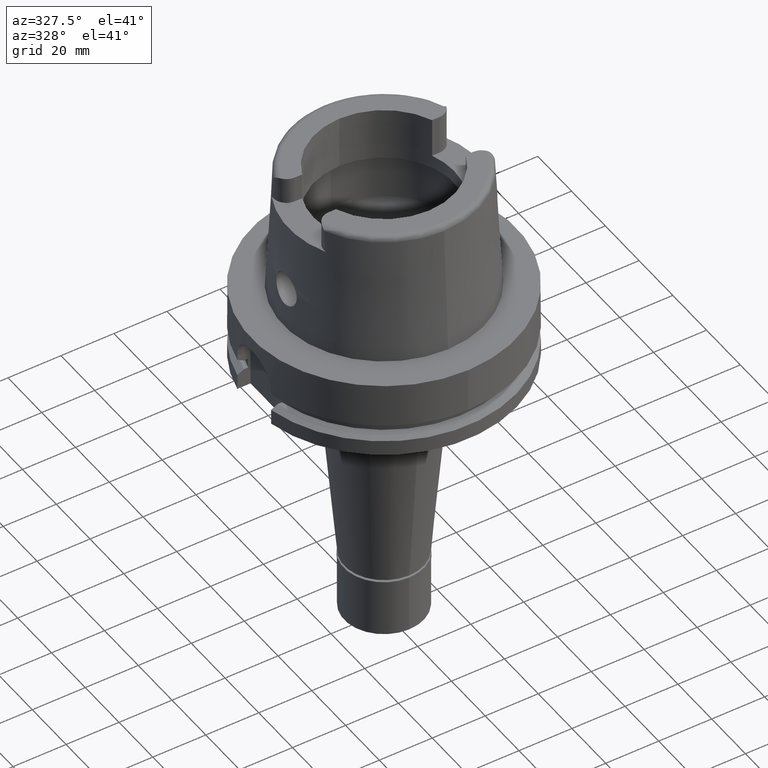
[diagram: clean part render]
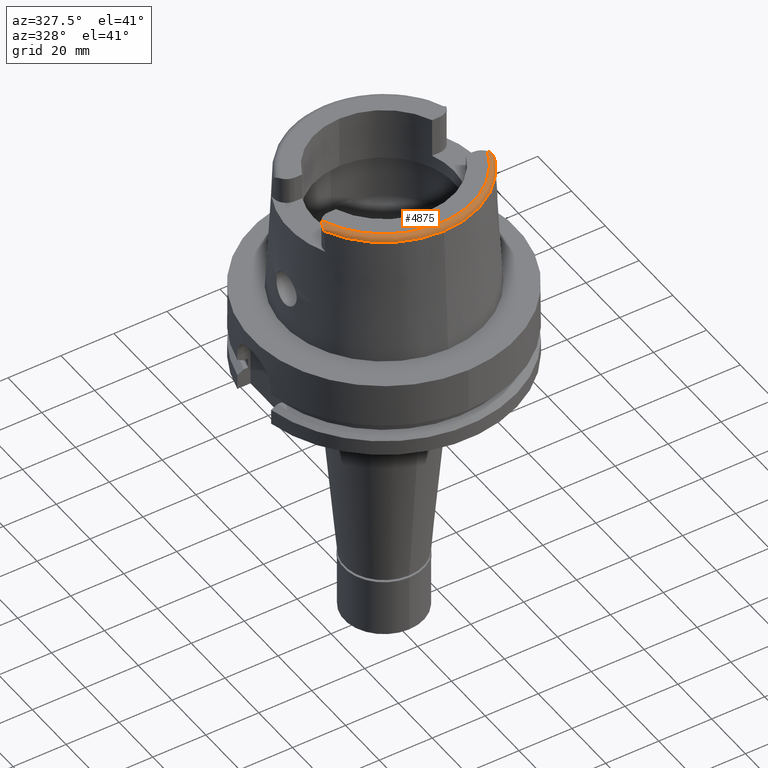
[diagram: same view with one face highlighted and labeled with its STEP entity id]
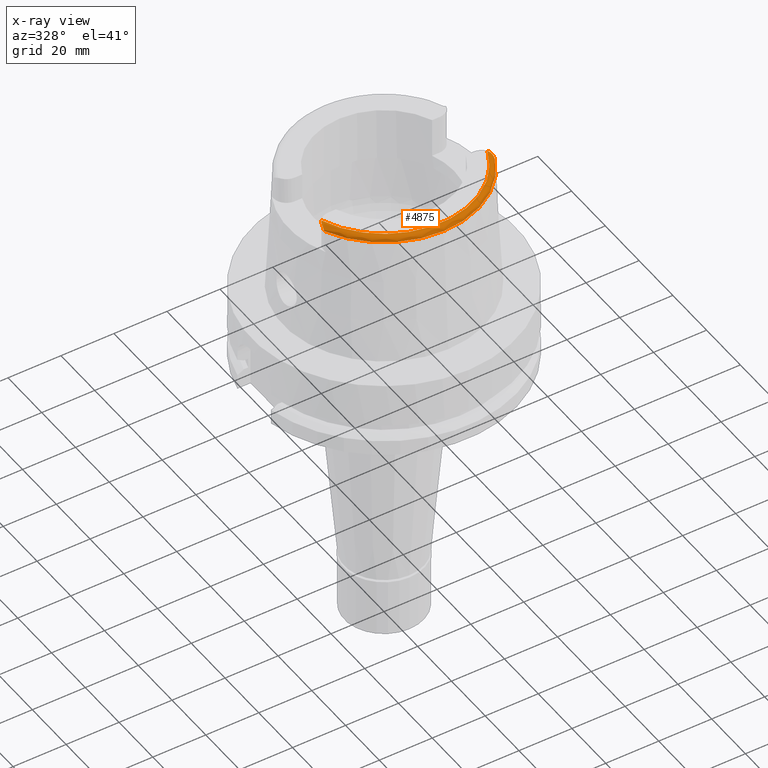
[diagram: x-ray of the same camera — body ghosted, the highlighted face saturated]
A machine part, auxiliary view. The second image highlights one B-rep face of the part: STEP entity #4875.
The next image is the same camera in x-ray: the body ghosted, the highlighted face saturated — about 0% of this face is hidden behind the body in this view.
In plain terms, the highlighted toroidal blend (fillet) surface has major radius 33.5974 mm and minor (blend) radius 2 mm.
Its self-contained STEP definition (entity closure, byte-faithful):
#71 = CARTESIAN_POINT ( 'NONE',  ( -32.09833310150607133, -13.68067166794114975, 49.52555733028275142 ) ) ;
#97 = CARTESIAN_POINT ( 'NONE',  ( -32.03284760170905798, -13.44961124604714620, 49.64065071231775761 ) ) ;
#181 = CARTESIAN_POINT ( 'NONE',  ( -32.25000000000000000, -14.89000000000000057, 48.54599893821999501 ) ) ;
#293 = CARTESIAN_POINT ( 'NONE',  ( 32.25000000000000000, -14.98829434861787568, 48.40080381515296182 ) ) ;
#328 = EDGE_LOOP ( 'NONE', ( #2482, #2587, #1575, #4376, #4894, #468, #4666 ) ) ;
#332 = EDGE_CURVE ( 'NONE', #2968, #455, #865, .T. ) ;
#391 = CARTESIAN_POINT ( 'NONE',  ( 32.20548420144861268, -14.23007950369171759, 49.18558415269623652 ) ) ;
#400 = DIRECTION ( 'NONE',  ( 0.0000000000000000000, 0.0000000000000000000, -1.000000000000000000 ) ) ;
#414 = CARTESIAN_POINT ( 'NONE',  ( -32.25000000000000000, -14.89000000000000057, 48.54599893821999501 ) ) ;
#418 = AXIS2_PLACEMENT_3D ( 'NONE', #2321, #3109, #4409 ) ;
#455 = VERTEX_POINT ( 'NONE', #632 ) ;
#457 = CARTESIAN_POINT ( 'NONE',  ( 32.22722436599814699, -14.41846040332962708, 49.04057043078855571 ) ) ;
#464 = DIRECTION ( 'NONE',  ( 0.9060280460804950309, -0.4232176505245974218, 0.0000000000000000000 ) ) ;
#468 = ORIENTED_EDGE ( 'NONE', *, *, #4942, .F. ) ;
#508 = CARTESIAN_POINT ( 'NONE',  ( 31.89458010135162880, -13.05860339545219873, 49.80434288758333850 ) ) ;
#530 = CARTESIAN_POINT ( 'NONE',  ( -32.00396948975434697, -13.35994016288231379, 49.68130548208285546 ) ) ;
#556 = CARTESIAN_POINT ( 'NONE',  ( -32.23705017804141448, -14.53399294807555719, 48.94196780429989246 ) ) ;
#588 = DIRECTION ( 'NONE',  ( 0.0000000000000000000, 0.0000000000000000000, -1.000000000000000000 ) ) ;
#614 = CARTESIAN_POINT ( 'NONE',  ( -32.12998128318812974, -13.81424895806820885, 49.45118095487575971 ) ) ;
#632 = CARTESIAN_POINT ( 'NONE',  ( 1.065814103639999922E-14, -35.59494289391000166, 48.09987853799000135 ) ) ;
#664 = CARTESIAN_POINT ( 'NONE',  ( 32.25000000000000000, -15.04642710755787505, 48.25215143672629381 ) ) ;
#731 = VERTEX_POINT ( 'NONE', #2616 ) ;
#740 = CARTESIAN_POINT ( 'NONE',  ( 0.0000000000000000000, 0.0000000000000000000, 48.09987853799000135 ) ) ;
#827 = DIRECTION ( 'NONE',  ( 0.0000000000000000000, 0.0000000000000000000, -1.000000000000000000 ) ) ;
#865 = CIRCLE ( 'NONE', #4095, 35.59494289391000166 ) ;
#872 = CARTESIAN_POINT ( 'NONE',  ( 32.22449809470619897, -14.39105160458542976, 49.06276821456714998 ) ) ;
#929 = CARTESIAN_POINT ( 'NONE',  ( 31.84733301274679462, -12.94722851228626403, 49.84229474424294892 ) ) ;
#958 = CARTESIAN_POINT ( 'NONE',  ( 32.24707266325546584, -14.63394777628119314, 48.86148399507136020 ) ) ;
#985 = CARTESIAN_POINT ( 'NONE',  ( -32.21993092524999724, -14.33955139585496141, 49.10607830487598591 ) ) ;
#1010 = CARTESIAN_POINT ( 'NONE',  ( -31.88010272184707006, -13.01941478284857645, 49.82008690588731525 ) ) ;
#1212 = CARTESIAN_POINT ( 'NONE',  ( 32.25000000000000000, -14.89000000000000057, 48.54599893821999501 ) ) ;
#1223 = B_SPLINE_CURVE_WITH_KNOTS ( 'NONE', 3,
 ( #5553, #3458, #5245, #929, #508, #2105, #2589, #3945, #1387, #3090, #3037, #3066, #2613, #1277, #2222, #4782, #3825, #4807, #391, #2639, #1748, #872, #457, #958, #2168, #4363 ),
 .UNSPECIFIED., .F., .F.,
 ( 4, 2, 1, 1, 2, 2, 1, 1, 2, 2, 2, 2, 2, 2, 4 ),
 ( 0.0000000000000000000, 0.2500000000000245914, 0.3125000000000313638, 0.3437500000000338618, 0.3593750000000334177, 0.3750000000000329181, 0.4375000000000286993, 0.4687500000000267009, 0.4843750000000274225, 0.5000000000000281997, 0.6250000000000275335, 0.6875000000000277556, 0.7187500000000263123, 0.7500000000000247580, 1.000000000000000000 ),
 .UNSPECIFIED. ) ;
#1237 = B_SPLINE_CURVE_WITH_KNOTS ( 'NONE', 3,
 ( #4511, #293, #664, #5456 ),
 .UNSPECIFIED., .F., .F.,
 ( 4, 4 ),
 ( 0.0000000000000000000, 1.000000000000000000 ),
 .UNSPECIFIED. ) ;
#1277 = CARTESIAN_POINT ( 'NONE',  ( 32.10665109209416102, -13.71574888760160427, 49.50602525546396748 ) ) ;
#1381 = CARTESIAN_POINT ( 'NONE',  ( -32.01566784162267965, -13.39583580472297797, 49.66518408760291692 ) ) ;
#1387 = CARTESIAN_POINT ( 'NONE',  ( 31.98608483690798465, -13.30680085940336710, 49.70456204914859200 ) ) ;
#1481 = CARTESIAN_POINT ( 'NONE',  ( -32.24916105310609993, -14.77253542027677291, 48.70381565520280276 ) ) ;
#1575 = ORIENTED_EDGE ( 'NONE', *, *, #4588, .F. ) ;
#1602 = CIRCLE ( 'NONE', #4752, 35.59494289391000166 ) ;
#1748 = CARTESIAN_POINT ( 'NONE',  ( 32.21879730786056939, -14.33839695425322880, 49.10421332399464944 ) ) ;
#1792 = VERTEX_POINT ( 'NONE', #414 ) ;
#1928 = DIRECTION ( 'NONE',  ( 0.9332215253017949186, -0.3593015233941980191, 0.0000000000000000000 ) ) ;
#2039 = CIRCLE ( 'NONE', #3934, 33.59743838135999994 ) ;
#2105 = CARTESIAN_POINT ( 'NONE',  ( 31.94497555618124096, -13.19092092821708562, 49.75292820392017035 ) ) ;
#2117 = EDGE_CURVE ( 'NONE', #455, #4707, #1602, .T. ) ;
#2168 = CARTESIAN_POINT ( 'NONE',  ( 32.24999999999999289, -14.78353746832705085, 48.70325966183432342 ) ) ;
#2212 = CARTESIAN_POINT ( 'NONE',  ( -32.16832542810696793, -13.99875405973865661, 49.34121622961377085 ) ) ;
#2222 = CARTESIAN_POINT ( 'NONE',  ( 32.11134023575498020, -13.73485355347845882, 49.49559911225204445 ) ) ;
#2242 = CARTESIAN_POINT ( 'NONE',  ( -31.68129990105690652, -12.58133033369902698, 49.95502172647183414 ) ) ;
#2266 = FACE_OUTER_BOUND ( 'NONE', #328, .T. ) ;
#2321 = CARTESIAN_POINT ( 'NONE',  ( 0.0000000000000000000, 0.0000000000000000000, 48.00000000000000000 ) ) ;
#2482 = ORIENTED_EDGE ( 'NONE', *, *, #2117, .F. ) ;
#2587 = ORIENTED_EDGE ( 'NONE', *, *, #332, .F. ) ;
#2589 = CARTESIAN_POINT ( 'NONE',  ( 31.96554388061401042, -13.24811469653341156, 49.72936387144443415 ) ) ;
#2601 = CARTESIAN_POINT ( 'NONE',  ( -32.25000000000000000, -14.89000000000000057, 48.54599893821999501 ) ) ;
#2613 = CARTESIAN_POINT ( 'NONE',  ( 32.09778792415826132, -13.68055773705854250, 49.52493964563241491 ) ) ;
#2616 = CARTESIAN_POINT ( 'NONE',  ( 31.35385269249000473, -12.07161079256999869, 50.00000000000000000 ) ) ;
#2639 = CARTESIAN_POINT ( 'NONE',  ( 32.21568334616320328, -14.31163719025748016, 49.12471882297219850 ) ) ;
#2741 = CARTESIAN_POINT ( 'NONE',  ( -32.11939246537817638, -13.76839544929866399, 49.47705722755927127 ) ) ;
#2968 = VERTEX_POINT ( 'NONE', #4375 ) ;
#2984 = DIRECTION ( 'NONE',  ( 0.0000000000000000000, -1.000000000000000000, 0.0000000000000000000 ) ) ;
#3015 = EDGE_CURVE ( 'NONE', #4707, #1792, #3964, .T. ) ;
#3037 = CARTESIAN_POINT ( 'NONE',  ( 32.04996694640500721, -13.50369361141459024, 49.61585731392293752 ) ) ;
#3066 = CARTESIAN_POINT ( 'NONE',  ( 32.08415713812918568, -13.62767989414509451, 49.55295759063814387 ) ) ;
#3090 = CARTESIAN_POINT ( 'NONE',  ( 32.01646055877388619, -13.39649937367242849, 49.66552767948945046 ) ) ;
#3109 = DIRECTION ( 'NONE',  ( 0.0000000000000000000, 0.0000000000000000000, 1.000000000000000000 ) ) ;
#3143 = CARTESIAN_POINT ( 'NONE',  ( -32.23860614430194005, -14.55603428147738754, 48.92207192102272728 ) ) ;
#3189 = CARTESIAN_POINT ( 'NONE',  ( -32.17890937815720775, -14.05801643782550236, 49.30332091372176251 ) ) ;
#3263 = VERTEX_POINT ( 'NONE', #3399 ) ;
#3379 = TOROIDAL_SURFACE ( 'NONE', #418, 33.59743838135999994, 2.000000000000000000 ) ;
#3399 = CARTESIAN_POINT ( 'NONE',  ( -31.35385269249000473, -12.07161079256999869, 50.00000000000000000 ) ) ;
#3458 = CARTESIAN_POINT ( 'NONE',  ( 31.52519067924490415, -12.31380065693250359, 50.00000000000000711 ) ) ;
#3513 = CARTESIAN_POINT ( 'NONE',  ( -32.14053296851734132, -13.86130874006674496, 49.42421559846660273 ) ) ;
#3538 = CARTESIAN_POINT ( 'NONE',  ( -31.35385269249000473, -12.07161079256999869, 50.00000000000000000 ) ) ;
#3565 = CARTESIAN_POINT ( 'NONE',  ( -32.07039259755143235, -13.57457271587090730, 49.58094718502850640 ) ) ;
#3600 = CARTESIAN_POINT ( 'NONE',  ( -32.20669186167263831, -14.23088236599436129, 49.18704628958384006 ) ) ;
#3619 = CARTESIAN_POINT ( 'NONE',  ( -32.25000000000000711, -14.83666364120427694, 48.62478453769007558 ) ) ;
#3634 = VERTEX_POINT ( 'NONE', #1212 ) ;
#3825 = CARTESIAN_POINT ( 'NONE',  ( 32.16973544114853212, -14.00083717796830207, 49.34181413801352534 ) ) ;
#3875 = CARTESIAN_POINT ( 'NONE',  ( -32.25000000000000000, -14.98833473143944239, 48.40074416381243338 ) ) ;
#3934 = AXIS2_PLACEMENT_3D ( 'NONE', #4056, #588, #1928 ) ;
#3936 = CARTESIAN_POINT ( 'NONE',  ( -32.15017614216606034, -13.90751457523325740, 49.39676486522082399 ) ) ;
#3945 = CARTESIAN_POINT ( 'NONE',  ( 31.97902540861255360, -13.28634926148108519, 49.71331443467204281 ) ) ;
#3960 = CARTESIAN_POINT ( 'NONE',  ( -31.52505740257469213, -12.31361226754325955, 49.99999999999998579 ) ) ;
#3964 = B_SPLINE_CURVE_WITH_KNOTS ( 'NONE', 3,
 ( #4742, #5231, #3875, #2601 ),
 .UNSPECIFIED., .F., .F.,
 ( 4, 4 ),
 ( 0.0000000000000000000, 1.000000000000000000 ),
 .UNSPECIFIED. ) ;
#3988 = CARTESIAN_POINT ( 'NONE',  ( -32.12273864565368342, -13.78268907409492705, 49.46904999762931254 ) ) ;
#4018 = CARTESIAN_POINT ( 'NONE',  ( -32.24473339728576349, -14.66026769318207457, 48.82273060853584212 ) ) ;
#4056 = CARTESIAN_POINT ( 'NONE',  ( 0.0000000000000000000, 0.0000000000000000000, 50.00000000000000000 ) ) ;
#4095 = AXIS2_PLACEMENT_3D ( 'NONE', #4322, #400, #464 ) ;
#4322 = CARTESIAN_POINT ( 'NONE',  ( 0.0000000000000000000, 0.0000000000000000000, 48.09987853799000135 ) ) ;
#4363 = CARTESIAN_POINT ( 'NONE',  ( 32.25000000000000000, -14.89000000000000057, 48.54599893821999501 ) ) ;
#4375 = CARTESIAN_POINT ( 'NONE',  ( 32.25000552016999222, -15.06439827681999866, 48.10004180294000520 ) ) ;
#4376 = ORIENTED_EDGE ( 'NONE', *, *, #5398, .F. ) ;
#4383 = CARTESIAN_POINT ( 'NONE',  ( -32.23351614273384058, -14.48859099915391724, 48.98179026060955010 ) ) ;
#4409 = DIRECTION ( 'NONE',  ( -0.0004184165975219878483, -0.9999999124637716230, 0.0000000000000000000 ) ) ;
#4457 = CARTESIAN_POINT ( 'NONE',  ( -31.93978611614276630, -13.17016595265481094, 49.76398645156413636 ) ) ;
#4511 = CARTESIAN_POINT ( 'NONE',  ( 32.25000000000000000, -14.89000000000000057, 48.54599893821999501 ) ) ;
#4588 = EDGE_CURVE ( 'NONE', #3634, #2968, #1237, .T. ) ;
#4664 = CARTESIAN_POINT ( 'NONE',  ( -32.24999491821000674, -15.06448482180999981, 48.09973250704000236 ) ) ;
#4666 = ORIENTED_EDGE ( 'NONE', *, *, #3015, .F. ) ;
#4707 = VERTEX_POINT ( 'NONE', #4664 ) ;
#4742 = CARTESIAN_POINT ( 'NONE',  ( -32.24999491821000674, -15.06448482180999981, 48.09973250704000236 ) ) ;
#4752 = AXIS2_PLACEMENT_3D ( 'NONE', #740, #827, #2984 ) ;
#4782 = CARTESIAN_POINT ( 'NONE',  ( 32.14589624978871996, -13.87879782749612723, 49.41602212742060374 ) ) ;
#4807 = CARTESIAN_POINT ( 'NONE',  ( 32.19754232821033213, -14.17400225097228628, 49.22529281623416608 ) ) ;
#4831 = CARTESIAN_POINT ( 'NONE',  ( -32.23166741813252401, -14.46663090179804101, 49.00055386322128470 ) ) ;
#4860 = CARTESIAN_POINT ( 'NONE',  ( -31.99841625382265065, -13.34320490052762054, 49.68871173567664101 ) ) ;
#4875 = ADVANCED_FACE ( 'NONE', ( #2266 ), #3379, .T. ) ;
#4894 = ORIENTED_EDGE ( 'NONE', *, *, #5464, .T. ) ;
#4942 = EDGE_CURVE ( 'NONE', #1792, #3263, #5396, .T. ) ;
#5231 = CARTESIAN_POINT ( 'NONE',  ( -32.25000000000000000, -15.04649633870944214, 48.25198868675242636 ) ) ;
#5245 = CARTESIAN_POINT ( 'NONE',  ( 31.68115790808501231, -12.58091601286417927, 49.95520566156481834 ) ) ;
#5292 = CARTESIAN_POINT ( 'NONE',  ( -32.24272264120833142, -14.62016742267234015, 48.86243030582419067 ) ) ;
#5396 = B_SPLINE_CURVE_WITH_KNOTS ( 'NONE', 3,
 ( #181, #3619, #1481, #4018, #5292, #3143, #556, #4383, #4831, #985, #3600, #3189, #2212, #3936, #3513, #614, #3988, #2741, #71, #3565, #97, #1381, #530, #4860, #4457, #1010, #2242, #3960, #3538 ),
 .UNSPECIFIED., .F., .F.,
 ( 4, 2, 2, 2, 2, 2, 2, 1, 2, 2, 1, 1, 2, 2, 2, 4 ),
 ( 0.0000000000000000000, 0.1250000000000079659, 0.1875000000000148492, 0.2187500000000177636, 0.2500000000000207057, 0.3750000000000299205, 0.4375000000000334177, 0.4687500000000343059, 0.4843750000000347500, 0.5000000000000351941, 0.5625000000000367484, 0.5937500000000363043, 0.6093750000000349720, 0.6250000000000336398, 0.7500000000000220934, 1.000000000000000000 ),
 .UNSPECIFIED. ) ;
#5398 = EDGE_CURVE ( 'NONE', #731, #3634, #1223, .T. ) ;
#5456 = CARTESIAN_POINT ( 'NONE',  ( 32.25000552016999222, -15.06439827681999866, 48.10004180294000520 ) ) ;
#5464 = EDGE_CURVE ( 'NONE', #731, #3263, #2039, .T. ) ;
#5553 = CARTESIAN_POINT ( 'NONE',  ( 31.35385269249000473, -12.07161079256999869, 50.00000000000000000 ) ) ;